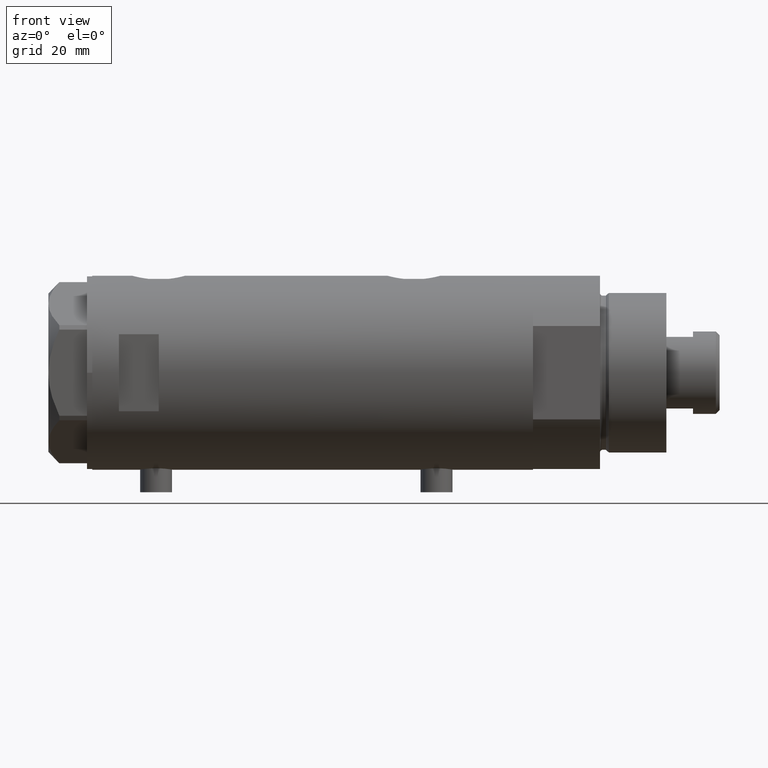
[diagram: clean part render]
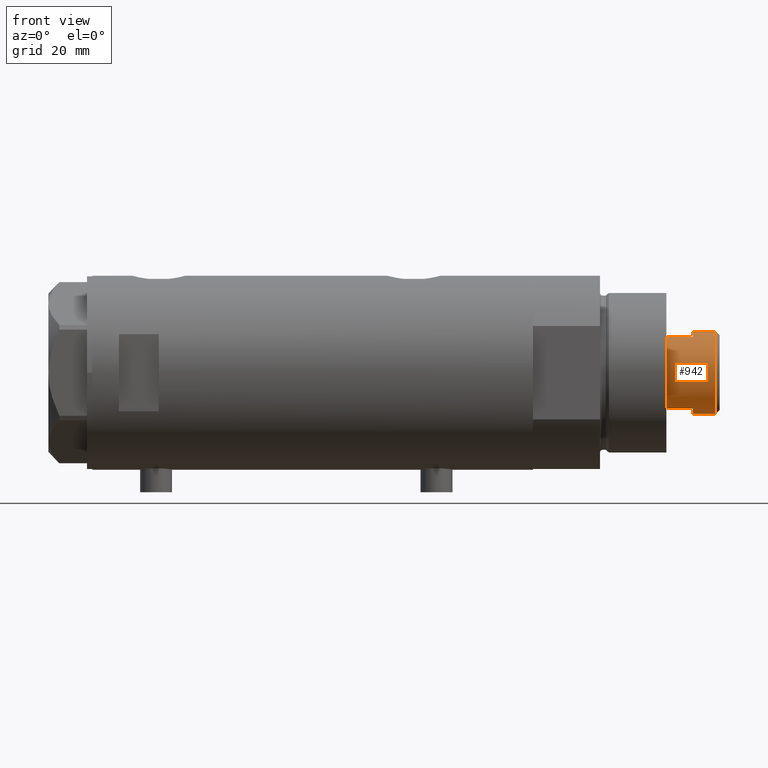
[diagram: same view with one face highlighted and labeled with its STEP entity id]
A machine part, front view. The second image highlights one B-rep face of the part: STEP entity #942.
In plain terms, the highlighted cylindrical surface (partial cylindrical patch) has radius 15.5 mm, axis along (-1, -0, 0).
Its self-contained STEP definition (entity closure, byte-faithful):
#65 = VERTEX_POINT ( 'NONE', #239 ) ;
#98 = ORIENTED_EDGE ( 'NONE', *, *, #3258, .F. ) ;
#102 = VECTOR ( 'NONE', #919, 1000.000000000000000 ) ;
#172 = CYLINDRICAL_SURFACE ( 'NONE', #2135, 15.49999999999999822 ) ;
#239 = CARTESIAN_POINT ( 'NONE',  ( -13.48630416385452335, -7.640000000000004121, 200.0000000000000000 ) ) ;
#244 = ORIENTED_EDGE ( 'NONE', *, *, #1040, .F. ) ;
#293 = VERTEX_POINT ( 'NONE', #4178 ) ;
#393 = AXIS2_PLACEMENT_3D ( 'NONE', #3721, #1562, #1232 ) ;
#544 = EDGE_CURVE ( 'NONE', #2949, #3544, #1271, .T. ) ;
#823 = DIRECTION ( 'NONE',  ( 0.000000000000000000, 0.000000000000000000, -1.000000000000000000 ) ) ;
#867 = CARTESIAN_POINT ( 'NONE',  ( 13.48630416385452691, -7.639999999999914415, 190.0000000000000000 ) ) ;
#890 = CARTESIAN_POINT ( 'NONE',  ( -15.49999999999999822, 0.000000000000000000, 200.0000000000000000 ) ) ;
#919 = DIRECTION ( 'NONE',  ( -0.000000000000000000, -0.000000000000000000, -1.000000000000000000 ) ) ;
#922 = CARTESIAN_POINT ( 'NONE',  ( 0.000000000000000000, 0.000000000000000000, 200.0000000000000000 ) ) ;
#938 = EDGE_CURVE ( 'NONE', #1847, #65, #1355, .T. ) ;
#942 = ADVANCED_FACE ( 'NONE', ( #3174 ), #172, .T. ) ;
#959 = ORIENTED_EDGE ( 'NONE', *, *, #3346, .T. ) ;
#1040 = EDGE_CURVE ( 'NONE', #1333, #3544, #1704, .T. ) ;
#1093 = CARTESIAN_POINT ( 'NONE',  ( 15.49999999999999822, 1.898202538678397163E-15, 208.5999999999999659 ) ) ;
#1232 = DIRECTION ( 'NONE',  ( 1.000000000000000000, 0.000000000000000000, 0.000000000000000000 ) ) ;
#1271 = CIRCLE ( 'NONE', #393, 15.50000000000000000 ) ;
#1280 = LINE ( 'NONE', #2462, #4660 ) ;
#1333 = VERTEX_POINT ( 'NONE', #1093 ) ;
#1355 = CIRCLE ( 'NONE', #2435, 15.50000000000000000 ) ;
#1450 = EDGE_LOOP ( 'NONE', ( #244, #3685, #959, #3909, #3567, #1881, #98, #2536 ) ) ;
#1518 = CIRCLE ( 'NONE', #4212, 15.49999999999999822 ) ;
#1562 = DIRECTION ( 'NONE',  ( 0.000000000000000000, 0.000000000000000000, 1.000000000000000000 ) ) ;
#1599 = AXIS2_PLACEMENT_3D ( 'NONE', #2337, #823, #3800 ) ;
#1696 = LINE ( 'NONE', #2441, #4292 ) ;
#1704 = LINE ( 'NONE', #4271, #3274 ) ;
#1847 = VERTEX_POINT ( 'NONE', #4742 ) ;
#1861 = CARTESIAN_POINT ( 'NONE',  ( 15.50000000000000178, 1.898202538678397557E-15, 200.0000000000000000 ) ) ;
#1881 = ORIENTED_EDGE ( 'NONE', *, *, #4418, .T. ) ;
#1926 = VERTEX_POINT ( 'NONE', #4479 ) ;
#2008 = DIRECTION ( 'NONE',  ( -0.000000000000000000, -0.000000000000000000, -1.000000000000000000 ) ) ;
#2079 = DIRECTION ( 'NONE',  ( 1.000000000000000000, 0.000000000000000000, 0.000000000000000000 ) ) ;
#2135 = AXIS2_PLACEMENT_3D ( 'NONE', #922, #3857, #2391 ) ;
#2337 = CARTESIAN_POINT ( 'NONE',  ( 0.000000000000000000, 0.000000000000000000, 208.5999999999999659 ) ) ;
#2391 = DIRECTION ( 'NONE',  ( -1.000000000000000000, 0.000000000000000000, 0.000000000000000000 ) ) ;
#2435 = AXIS2_PLACEMENT_3D ( 'NONE', #2718, #4195, #2445 ) ;
#2441 = CARTESIAN_POINT ( 'NONE',  ( -13.48630416385452691, -7.640000000000001457, 200.0000000000000000 ) ) ;
#2445 = DIRECTION ( 'NONE',  ( 1.000000000000000000, 0.000000000000000000, 0.000000000000000000 ) ) ;
#2462 = CARTESIAN_POINT ( 'NONE',  ( 13.48630416385453046, -7.639999999999995239, 200.0000000000000000 ) ) ;
#2536 = ORIENTED_EDGE ( 'NONE', *, *, #544, .T. ) ;
#2673 = CIRCLE ( 'NONE', #1599, 15.49999999999999822 ) ;
#2718 = CARTESIAN_POINT ( 'NONE',  ( 0.000000000000000000, 0.000000000000000000, 200.0000000000000000 ) ) ;
#2949 = VERTEX_POINT ( 'NONE', #2978 ) ;
#2978 = CARTESIAN_POINT ( 'NONE',  ( 13.48630416385453046, -7.639999999999995239, 200.0000000000000000 ) ) ;
#3114 = CARTESIAN_POINT ( 'NONE',  ( 0.000000000000000000, 0.000000000000000000, 190.0000000000000000 ) ) ;
#3174 = FACE_OUTER_BOUND ( 'NONE', #1450, .T. ) ;
#3258 = EDGE_CURVE ( 'NONE', #2949, #4342, #1280, .T. ) ;
#3274 = VECTOR ( 'NONE', #2008, 1000.000000000000000 ) ;
#3346 = EDGE_CURVE ( 'NONE', #293, #1847, #4188, .T. ) ;
#3544 = VERTEX_POINT ( 'NONE', #1861 ) ;
#3567 = ORIENTED_EDGE ( 'NONE', *, *, #4457, .T. ) ;
#3685 = ORIENTED_EDGE ( 'NONE', *, *, #4356, .T. ) ;
#3721 = CARTESIAN_POINT ( 'NONE',  ( 0.000000000000000000, 0.000000000000000000, 200.0000000000000000 ) ) ;
#3800 = DIRECTION ( 'NONE',  ( 1.000000000000000000, 0.000000000000000000, 0.000000000000000000 ) ) ;
#3857 = DIRECTION ( 'NONE',  ( -0.000000000000000000, -0.000000000000000000, -1.000000000000000000 ) ) ;
#3907 = DIRECTION ( 'NONE',  ( 0.000000000000000000, 0.000000000000000000, 1.000000000000000000 ) ) ;
#3909 = ORIENTED_EDGE ( 'NONE', *, *, #938, .T. ) ;
#4178 = CARTESIAN_POINT ( 'NONE',  ( -15.49999999999999822, 0.000000000000000000, 208.5999999999999659 ) ) ;
#4188 = LINE ( 'NONE', #890, #102 ) ;
#4195 = DIRECTION ( 'NONE',  ( 0.000000000000000000, 0.000000000000000000, 1.000000000000000000 ) ) ;
#4212 = AXIS2_PLACEMENT_3D ( 'NONE', #3114, #3907, #2079 ) ;
#4271 = CARTESIAN_POINT ( 'NONE',  ( 15.49999999999999822, 1.898202538678397163E-15, 200.0000000000000000 ) ) ;
#4292 = VECTOR ( 'NONE', #4679, 1000.000000000000000 ) ;
#4342 = VERTEX_POINT ( 'NONE', #867 ) ;
#4356 = EDGE_CURVE ( 'NONE', #1333, #293, #2673, .T. ) ;
#4418 = EDGE_CURVE ( 'NONE', #1926, #4342, #1518, .T. ) ;
#4457 = EDGE_CURVE ( 'NONE', #65, #1926, #1696, .T. ) ;
#4479 = CARTESIAN_POINT ( 'NONE',  ( -13.48630416385452513, -7.639999999999921521, 190.0000000000000000 ) ) ;
#4625 = DIRECTION ( 'NONE',  ( -0.000000000000000000, -0.000000000000000000, -1.000000000000000000 ) ) ;
#4660 = VECTOR ( 'NONE', #4625, 1000.000000000000000 ) ;
#4679 = DIRECTION ( 'NONE',  ( -0.000000000000000000, -0.000000000000000000, -1.000000000000000000 ) ) ;
#4742 = CARTESIAN_POINT ( 'NONE',  ( -15.50000000000000178, 0.000000000000000000, 200.0000000000000000 ) ) ;